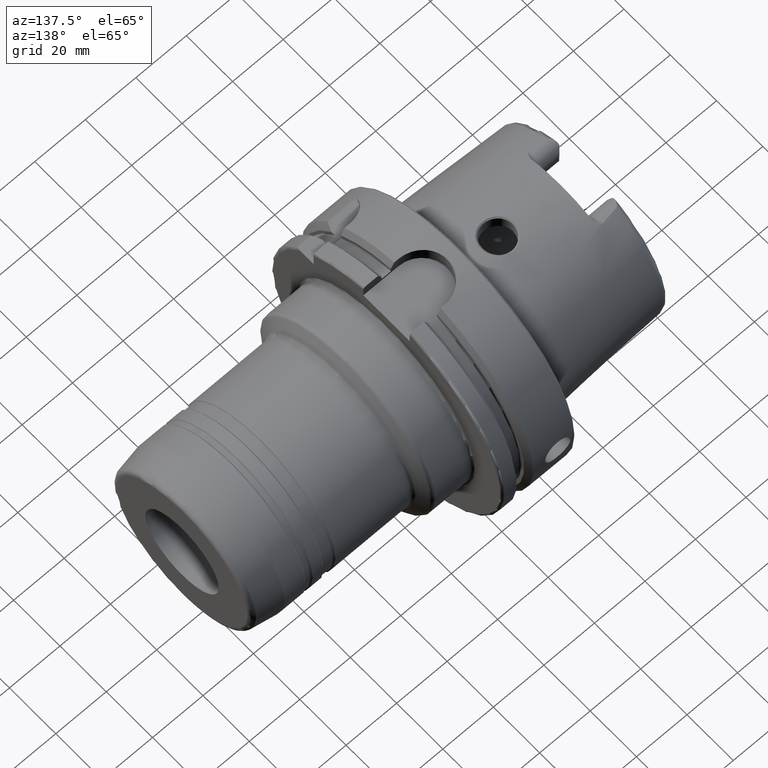
[diagram: clean part render]
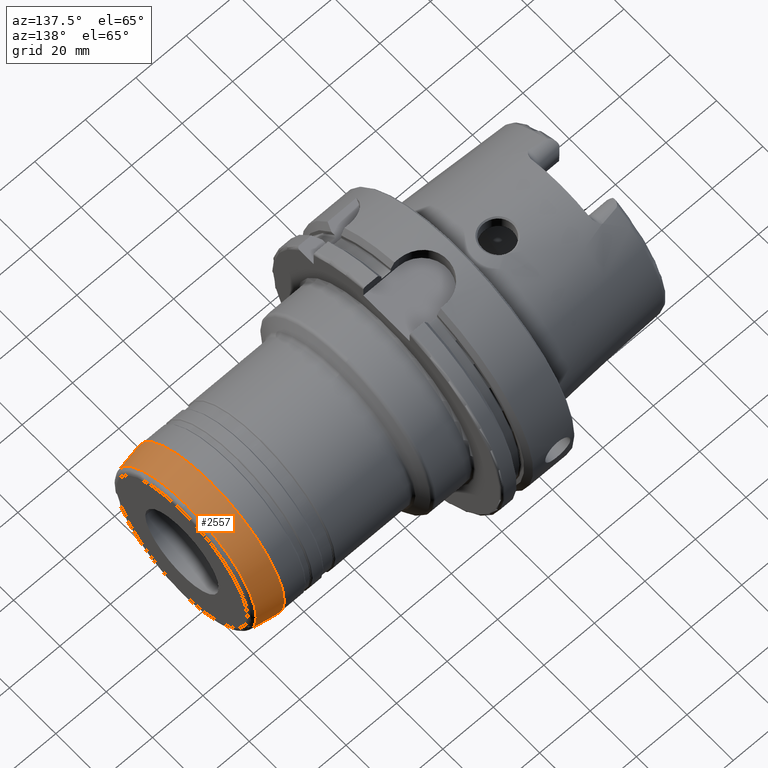
[diagram: same view with one face highlighted and labeled with its STEP entity id]
A machine part, auxiliary view. The second image highlights one B-rep face of the part: STEP entity #2557.
In plain terms, the highlighted conical surface has half-angle 10 deg.
Its self-contained STEP definition (entity closure, byte-faithful):
#182=LINE('',#3972,#297);
#297=VECTOR('',#3106,31.);
#412=CONICAL_SURFACE('',#2719,31.,0.174532925199432);
#433=FACE_OUTER_BOUND('',#569,.T.);
#569=EDGE_LOOP('',(#1677,#1678,#1679,#1680,#1681,#1682,#1683,#1684));
#717=CIRCLE('',#2715,30.2914162436699);
#718=CIRCLE('',#2716,30.2914162436699);
#719=CIRCLE('',#2717,30.2914162436699);
#721=CIRCLE('',#2720,31.9848077530122);
#722=CIRCLE('',#2721,31.9848077530122);
#723=CIRCLE('',#2722,31.9848077530122);
#951=VERTEX_POINT('',#3962);
#952=VERTEX_POINT('',#3964);
#953=VERTEX_POINT('',#3966);
#954=VERTEX_POINT('',#3971);
#955=VERTEX_POINT('',#3973);
#956=VERTEX_POINT('',#3975);
#1247=EDGE_CURVE('',#951,#952,#717,.T.);
#1248=EDGE_CURVE('',#952,#953,#718,.T.);
#1249=EDGE_CURVE('',#953,#951,#719,.T.);
#1251=EDGE_CURVE('',#952,#954,#182,.T.);
#1252=EDGE_CURVE('',#955,#954,#721,.T.);
#1253=EDGE_CURVE('',#956,#955,#722,.T.);
#1254=EDGE_CURVE('',#954,#956,#723,.T.);
#1677=ORIENTED_EDGE('',*,*,#1249,.F.);
#1678=ORIENTED_EDGE('',*,*,#1248,.F.);
#1679=ORIENTED_EDGE('',*,*,#1251,.T.);
#1680=ORIENTED_EDGE('',*,*,#1252,.F.);
#1681=ORIENTED_EDGE('',*,*,#1253,.F.);
#1682=ORIENTED_EDGE('',*,*,#1254,.F.);
#1683=ORIENTED_EDGE('',*,*,#1251,.F.);
#1684=ORIENTED_EDGE('',*,*,#1247,.F.);
#2557=ADVANCED_FACE('',(#433),#412,.T.);
#2715=AXIS2_PLACEMENT_3D('',#3965,#3096,#3097);
#2716=AXIS2_PLACEMENT_3D('',#3967,#3098,#3099);
#2717=AXIS2_PLACEMENT_3D('',#3968,#3100,#3101);
#2719=AXIS2_PLACEMENT_3D('',#3970,#3104,#3105);
#2720=AXIS2_PLACEMENT_3D('',#3974,#3107,#3108);
#2721=AXIS2_PLACEMENT_3D('',#3976,#3109,#3110);
#2722=AXIS2_PLACEMENT_3D('',#3977,#3111,#3112);
#3096=DIRECTION('center_axis',(1.,0.,0.));
#3097=DIRECTION('ref_axis',(0.,-1.,3.06161699786839E-17));
#3098=DIRECTION('center_axis',(1.,0.,0.));
#3099=DIRECTION('ref_axis',(0.,-1.,3.06161699786839E-17));
#3100=DIRECTION('center_axis',(1.,0.,0.));
#3101=DIRECTION('ref_axis',(0.,-1.,3.06161699786839E-17));
#3104=DIRECTION('center_axis',(-1.,0.,0.));
#3105=DIRECTION('ref_axis',(0.,1.,0.));
#3106=DIRECTION('',(-0.984807753012208,-0.17364817766693,-2.12657684957576E-17));
#3107=DIRECTION('center_axis',(-1.,0.,0.));
#3108=DIRECTION('ref_axis',(0.,-1.,3.06161699786838E-17));
#3109=DIRECTION('center_axis',(-1.,0.,0.));
#3110=DIRECTION('ref_axis',(0.,-1.,3.06161699786838E-17));
#3111=DIRECTION('center_axis',(-1.,0.,0.));
#3112=DIRECTION('ref_axis',(0.,-1.,3.06161699786838E-17));
#3962=CARTESIAN_POINT('',(108.347296355334,-3.70962859444504E-15,30.2914162436699));
#3964=CARTESIAN_POINT('',(108.347296355334,-30.2914162436699,-3.70962859444504E-15));
#3965=CARTESIAN_POINT('Origin',(108.347296355334,0.,-4.6370357430563E-15));
#3966=CARTESIAN_POINT('',(108.347296355334,30.2914162436699,-1.85481429722252E-15));
#3967=CARTESIAN_POINT('Origin',(108.347296355334,0.,-4.6370357430563E-15));
#3968=CARTESIAN_POINT('Origin',(108.347296355334,0.,-4.6370357430563E-15));
#3970=CARTESIAN_POINT('Origin',(104.328718180382,0.,0.));
#3971=CARTESIAN_POINT('',(98.7435958749055,-31.9848077530122,-3.91700924360699E-15));
#3972=CARTESIAN_POINT('',(104.328718180382,-31.,-3.7964050773568E-15));
#3973=CARTESIAN_POINT('',(98.7435958749055,31.9848077530122,-9.79252310901746E-15));
#3974=CARTESIAN_POINT('Origin',(98.7435958749055,0.,-4.89626155450873E-15));
#3975=CARTESIAN_POINT('',(98.7435958749055,-3.91700924360698E-15,31.9848077530122));
#3976=CARTESIAN_POINT('Origin',(98.7435958749055,0.,-4.89626155450873E-15));
#3977=CARTESIAN_POINT('Origin',(98.7435958749055,0.,-4.89626155450873E-15));